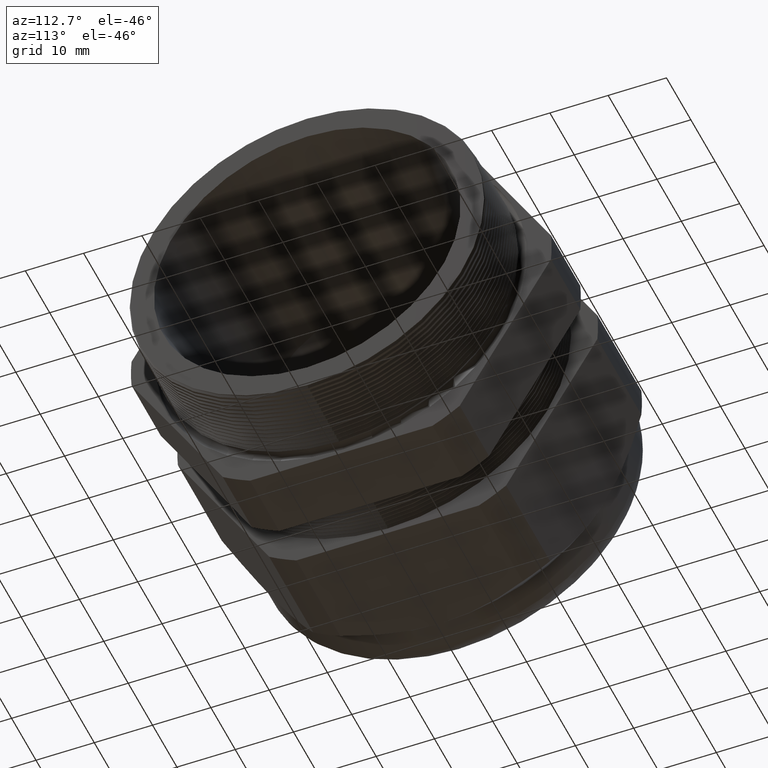
[diagram: clean part render]
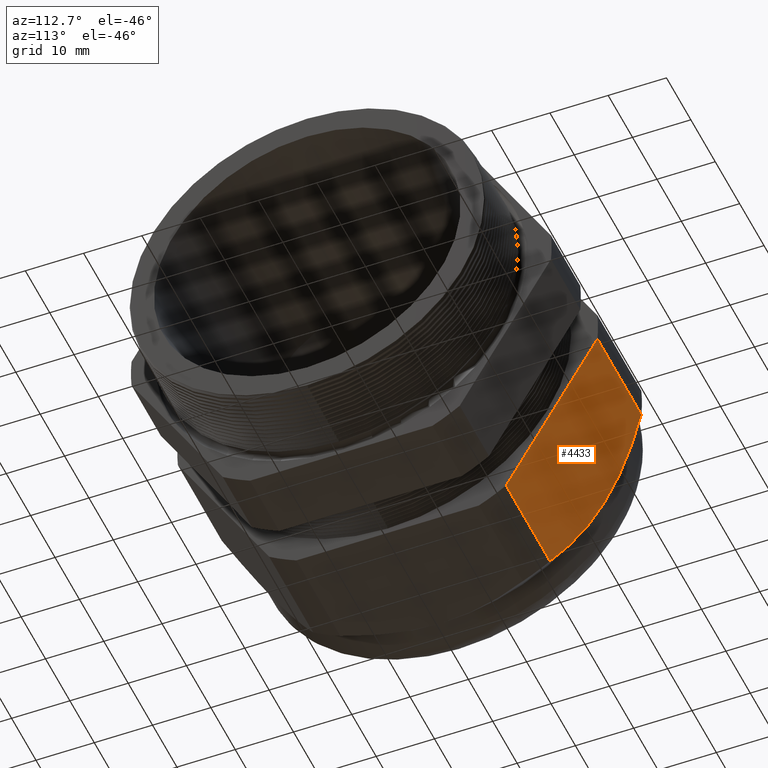
[diagram: same view with one face highlighted and labeled with its STEP entity id]
A machine part, auxiliary view. The second image highlights one B-rep face of the part: STEP entity #4433.
In plain terms, the highlighted planar face has unit normal (0, 0.866, -0.5).
Its self-contained STEP definition (entity closure, byte-faithful):
#1059 = CARTESIAN_POINT ( 'NONE',  ( -1.909291999999999500, 1.108512516844081300, -0.6399999999999995700 ) ) ;
#1614 = CARTESIAN_POINT ( 'NONE',  ( -1.768492000000000200, 0.8001812664006665600, -1.174045391329238800 ) ) ;
#1656 = CARTESIAN_POINT ( 'NONE',  ( -1.768492000000000000, 1.416843767287496500, -0.1059546086707606900 ) ) ;
#1657 = CARTESIAN_POINT ( 'NONE',  ( -1.789807280376754400, 1.392288398414134100, -0.1484857551580202100 ) ) ;
#1658 = CARTESIAN_POINT ( 'NONE',  ( -1.809379497512201500, 1.367365115742174900, -0.1916541470372545000 ) ) ;
#1659 = CARTESIAN_POINT ( 'NONE',  ( -1.844076898263659300, 1.316757461105979400, -0.2793091761190442100 ) ) ;
#1660 = CARTESIAN_POINT ( 'NONE',  ( -1.859065044692607100, 1.291267087779649900, -0.3234597978241440200 ) ) ;
#1661 = CARTESIAN_POINT ( 'NONE',  ( -1.895822934946116600, 1.214147434025103500, -0.4570349563891392700 ) ) ;
#1662 = CARTESIAN_POINT ( 'NONE',  ( -1.909291999999999300, 1.161862181089928600, -0.5475956709594522700 ) ) ;
#1663 = CARTESIAN_POINT ( 'NONE',  ( -1.909291999999999500, 1.108512516844081300, -0.6399999999999995700 ) ) ;
#1667 = CARTESIAN_POINT ( 'NONE',  ( -1.909291999999999500, 1.108512516844081300, -0.6399999999999995700 ) ) ;
#1668 = CARTESIAN_POINT ( 'NONE',  ( -1.909291999999999300, 1.095165949251063000, -0.6631169331777595500 ) ) ;
#1669 = CARTESIAN_POINT ( 'NONE',  ( -1.908447375922473400, 1.081697307527198100, -0.6864453049524365000 ) ) ;
#1670 = CARTESIAN_POINT ( 'NONE',  ( -1.905092703011700600, 1.054937557301919500, -0.7327945519404714900 ) ) ;
#1671 = CARTESIAN_POINT ( 'NONE',  ( -1.902593623238848700, 1.041660076878359700, -0.7557918226305783100 ) ) ;
#1672 = CARTESIAN_POINT ( 'NONE',  ( -1.892779944983450800, 1.002116279323628500, -0.8242836891195912700 ) ) ;
#1673 = CARTESIAN_POINT ( 'NONE',  ( -1.883148185439524000, 0.9761386958899315200, -0.8692781834846139400 ) ) ;
#1674 = CARTESIAN_POINT ( 'NONE',  ( -1.846263399014647100, 0.8992014914594099700, -1.002537330550590000 ) ) ;
#1675 = CARTESIAN_POINT ( 'NONE',  ( -1.811069874631296500, 0.8492313093245904600, -1.089088224871567900 ) ) ;
#1676 = CARTESIAN_POINT ( 'NONE',  ( -1.768492000000000200, 0.8001812664006665600, -1.174045391329238800 ) ) ;
#1677 = B_SPLINE_CURVE_WITH_KNOTS ( 'NONE', 3,
 ( #1663, #1662, #1661, #1660, #1659, #1658, #1657, #1656 ),
 .UNSPECIFIED., .F., .F.,
 ( 4, 2, 2, 4 ),
 ( 0.01607611893436946100, 0.02410854275338652300, 0.02812475466289505300, 0.03214096657240359000 ),
 .UNSPECIFIED. ) ;
#1678 = B_SPLINE_CURVE_WITH_KNOTS ( 'NONE', 3,
 ( #1676, #1675, #1674, #1673, #1672, #1671, #1670, #1669, #1668, #1667 ),
 .UNSPECIFIED., .F., .F.,
 ( 4, 2, 2, 2, 4 ),
 ( 2.483246117753155000E-007, 0.008038183629490611500, 0.01205715128193003200, 0.01406663510814974700, 0.01607611893436946100 ),
 .UNSPECIFIED. ) ;
#1679 = CARTESIAN_POINT ( 'NONE',  ( -1.058802799999999400, 0.8001812664006665600, -1.174045391329238800 ) ) ;
#1711 = DIRECTION ( 'NONE',  ( 0.0000000000000000000, 0.4999999999999998300, 0.8660254037844388200 ) ) ;
#1712 = DIRECTION ( 'NONE',  ( 0.0000000000000000000, 0.8660254037844388200, -0.4999999999999998300 ) ) ;
#1713 = CARTESIAN_POINT ( 'NONE',  ( 0.2400000000000001900, 1.416843767287496500, -0.1059546086707606900 ) ) ;
#1714 = AXIS2_PLACEMENT_3D ( 'NONE', #1713, #1712, #1711 ) ;
#1715 = PLANE ( 'NONE',  #1714 ) ;
#1716 = FACE_OUTER_BOUND ( 'NONE', #4432, .T. ) ;
#1736 = DIRECTION ( 'NONE',  ( -1.000000000000000000, 0.0000000000000000000, 0.0000000000000000000 ) ) ;
#1737 = VECTOR ( 'NONE', #1736, 39.37007874015748100 ) ;
#1738 = CARTESIAN_POINT ( 'NONE',  ( 0.2400000000000001900, 0.8001812664006665600, -1.174045391329238800 ) ) ;
#1739 = LINE ( 'NONE', #1738, #1737 ) ;
#1798 = DIRECTION ( 'NONE',  ( 0.0000000000000000000, 0.4999999999999998300, 0.8660254037844388200 ) ) ;
#1799 = VECTOR ( 'NONE', #1798, 39.37007874015748100 ) ;
#1800 = CARTESIAN_POINT ( 'NONE',  ( -1.058802799999999400, 1.418512516844081300, -0.1030642496536479400 ) ) ;
#1801 = LINE ( 'NONE', #1800, #1799 ) ;
#2403 = VERTEX_POINT ( 'NONE', #5785 ) ;
#2405 = EDGE_CURVE ( 'NONE', #2408, #2403, #5848, .T. ) ;
#2408 = VERTEX_POINT ( 'NONE', #5839 ) ;
#4105 = VERTEX_POINT ( 'NONE', #1059 ) ;
#4395 = VERTEX_POINT ( 'NONE', #1614 ) ;
#4420 = VERTEX_POINT ( 'NONE', #1679 ) ;
#4421 = ORIENTED_EDGE ( 'NONE', *, *, #4448, .T. ) ;
#4422 = ORIENTED_EDGE ( 'NONE', *, *, #4424, .T. ) ;
#4423 = ORIENTED_EDGE ( 'NONE', *, *, #4484, .F. ) ;
#4424 = EDGE_CURVE ( 'NONE', #4395, #4105, #1678, .T. ) ;
#4426 = ORIENTED_EDGE ( 'NONE', *, *, #4427, .T. ) ;
#4427 = EDGE_CURVE ( 'NONE', #4105, #2403, #1677, .T. ) ;
#4430 = ORIENTED_EDGE ( 'NONE', *, *, #2405, .F. ) ;
#4432 = EDGE_LOOP ( 'NONE', ( #4421, #4422, #4426, #4430, #4423 ) ) ;
#4433 = ADVANCED_FACE ( 'NONE', ( #1716 ), #1715, .T. ) ;
#4448 = EDGE_CURVE ( 'NONE', #4420, #4395, #1739, .T. ) ;
#4484 = EDGE_CURVE ( 'NONE', #4420, #2408, #1801, .T. ) ;
#5785 = CARTESIAN_POINT ( 'NONE',  ( -1.768492000000000000, 1.416843767287496500, -0.1059546086707606900 ) ) ;
#5839 = CARTESIAN_POINT ( 'NONE',  ( -1.058802799999999400, 1.416843767287496500, -0.1059546086707606900 ) ) ;
#5845 = DIRECTION ( 'NONE',  ( -1.000000000000000000, 0.0000000000000000000, 0.0000000000000000000 ) ) ;
#5846 = VECTOR ( 'NONE', #5845, 39.37007874015748100 ) ;
#5847 = CARTESIAN_POINT ( 'NONE',  ( 0.2400000000000001900, 1.416843767287496500, -0.1059546086707606900 ) ) ;
#5848 = LINE ( 'NONE', #5847, #5846 ) ;